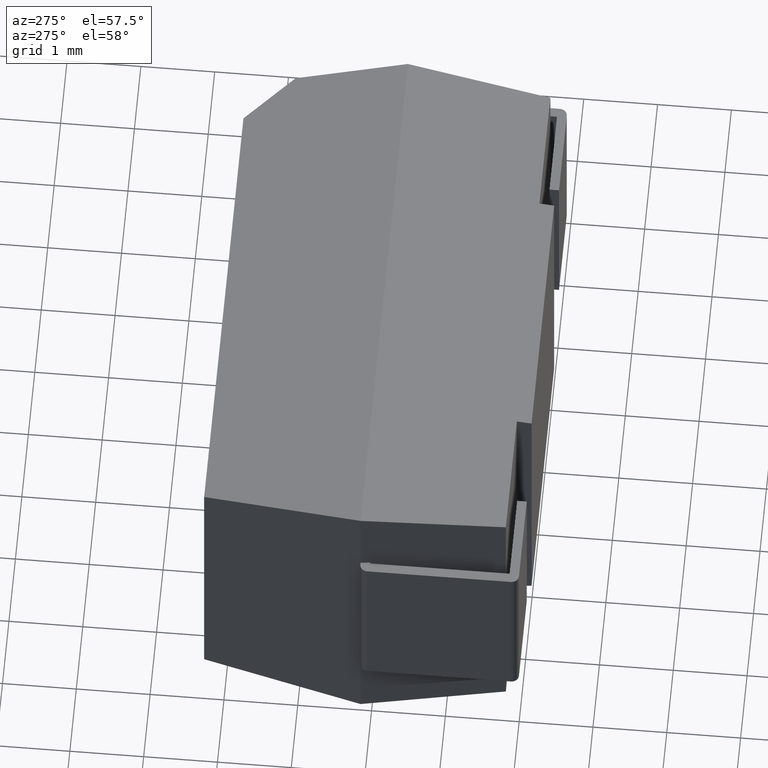
[diagram: clean part render]
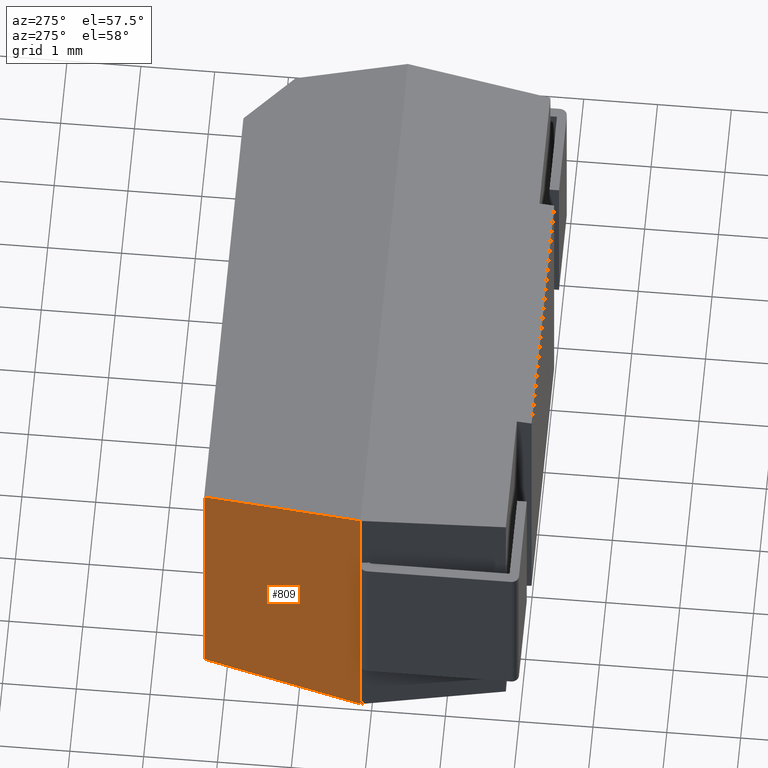
[diagram: same view with one face highlighted and labeled with its STEP entity id]
A machine part, auxiliary view. The second image highlights one B-rep face of the part: STEP entity #809.
In plain terms, the highlighted planar face has unit normal (-0.986, 0.167, 0).
Its self-contained STEP definition (entity closure, byte-faithful):
#31 = EDGE_CURVE ( 'NONE', #2853, #2757, #1978, .T. ) ;
#57 = PLANE ( 'NONE',  #2477 ) ;
#185 = DIRECTION ( 'NONE',  ( -0.1657572783236788971, -0.9788887349364673307, -0.1195883326132152757 ) ) ;
#311 = CARTESIAN_POINT ( 'NONE',  ( 0.000000000000000000, 2.149999999999998135, -4.599999999999999645 ) ) ;
#547 = EDGE_CURVE ( 'NONE', #2853, #3748, #2630, .T. ) ;
#557 = CARTESIAN_POINT ( 'NONE',  ( 0.000000000000000000, 2.149999999999998135, -4.599999999999999645 ) ) ;
#566 = DIRECTION ( 'NONE',  ( -0.000000000000000000, -0.000000000000000000, 1.000000000000000000 ) ) ;
#641 = CARTESIAN_POINT ( 'NONE',  ( -0.2576704267893988320, 0.6283131053957318191, 0.1859005952263995398 ) ) ;
#748 = VECTOR ( 'NONE', #185, 1000.000000000000114 ) ;
#758 = VECTOR ( 'NONE', #1373, 1000.000000000000000 ) ;
#809 = ADVANCED_FACE ( 'NONE', ( #3573 ), #57, .T. ) ;
#814 = VERTEX_POINT ( 'NONE', #2639 ) ;
#851 = LINE ( 'NONE', #557, #2584 ) ;
#915 = LINE ( 'NONE', #311, #2332 ) ;
#967 = ORIENTED_EDGE ( 'NONE', *, *, #1814, .T. ) ;
#1144 = EDGE_CURVE ( 'NONE', #814, #1926, #915, .T. ) ;
#1246 = DIRECTION ( 'NONE',  ( -0.1657572783236788971, -0.9788887349364673307, 0.1195883326132152757 ) ) ;
#1338 = CARTESIAN_POINT ( 'NONE',  ( 0.000000000000000000, 2.150000000000003464, -4.599999999999999645 ) ) ;
#1373 = DIRECTION ( 'NONE',  ( -0.000000000000000000, -0.000000000000000000, 1.000000000000000000 ) ) ;
#1437 = ORIENTED_EDGE ( 'NONE', *, *, #31, .T. ) ;
#1487 = CARTESIAN_POINT ( 'NONE',  ( 0.000000000000000000, 2.149999999999998135, -1.050000000000000044 ) ) ;
#1705 = CARTESIAN_POINT ( 'NONE',  ( -0.3488545548422725684, 0.08982021592113749453, -4.851686893993560901 ) ) ;
#1814 = EDGE_CURVE ( 'NONE', #1926, #3412, #851, .T. ) ;
#1926 = VERTEX_POINT ( 'NONE', #1487 ) ;
#1978 = LINE ( 'NONE', #1705, #748 ) ;
#2027 = DIRECTION ( 'NONE',  ( -0.000000000000000000, -0.000000000000000000, 1.000000000000000000 ) ) ;
#2040 = DIRECTION ( 'NONE',  ( -0.9859644449443968339, 0.1669554231089472318, 0.000000000000000000 ) ) ;
#2116 = DIRECTION ( 'NONE',  ( -0.1669554231089472041, -0.9859644449443967229, 0.000000000000000000 ) ) ;
#2170 = VECTOR ( 'NONE', #1246, 1000.000000000000114 ) ;
#2174 = CARTESIAN_POINT ( 'NONE',  ( 0.000000000000000000, 2.150000000000003464, 0.000000000000000000 ) ) ;
#2201 = LINE ( 'NONE', #641, #2170 ) ;
#2259 = CARTESIAN_POINT ( 'NONE',  ( 0.000000000000000000, 2.149999999999998135, -4.599999999999999645 ) ) ;
#2289 = CARTESIAN_POINT ( 'NONE',  ( 0.3640639999999995546, 4.299999999999999822, -4.337340000000000195 ) ) ;
#2312 = ORIENTED_EDGE ( 'NONE', *, *, #1144, .T. ) ;
#2332 = VECTOR ( 'NONE', #2417, 1000.000000000000000 ) ;
#2417 = DIRECTION ( 'NONE',  ( -0.000000000000000000, -0.000000000000000000, 1.000000000000000000 ) ) ;
#2435 = EDGE_CURVE ( 'NONE', #3748, #3412, #2201, .T. ) ;
#2477 = AXIS2_PLACEMENT_3D ( 'NONE', #3264, #2040, #2116 ) ;
#2557 = ORIENTED_EDGE ( 'NONE', *, *, #547, .F. ) ;
#2584 = VECTOR ( 'NONE', #2027, 1000.000000000000000 ) ;
#2630 = LINE ( 'NONE', #2891, #3054 ) ;
#2639 = CARTESIAN_POINT ( 'NONE',  ( 7.047314121155778821E-16, 2.150000000000003464, -3.549999999999999822 ) ) ;
#2757 = VERTEX_POINT ( 'NONE', #1338 ) ;
#2853 = VERTEX_POINT ( 'NONE', #2289 ) ;
#2891 = CARTESIAN_POINT ( 'NONE',  ( 0.3640639999999999987, 4.300000000000000711, -4.599999999999999645 ) ) ;
#3054 = VECTOR ( 'NONE', #566, 1000.000000000000000 ) ;
#3139 = EDGE_LOOP ( 'NONE', ( #2557, #1437, #3766, #2312, #967, #3407 ) ) ;
#3162 = EDGE_CURVE ( 'NONE', #2757, #814, #3770, .T. ) ;
#3241 = CARTESIAN_POINT ( 'NONE',  ( 0.3640639999999996101, 4.299999999999999822, -0.2626599999999997270 ) ) ;
#3264 = CARTESIAN_POINT ( 'NONE',  ( -0.3539160388135504931, 0.05992934360679828820, -4.599999999999999645 ) ) ;
#3407 = ORIENTED_EDGE ( 'NONE', *, *, #2435, .F. ) ;
#3412 = VERTEX_POINT ( 'NONE', #2174 ) ;
#3573 = FACE_OUTER_BOUND ( 'NONE', #3139, .T. ) ;
#3748 = VERTEX_POINT ( 'NONE', #3241 ) ;
#3766 = ORIENTED_EDGE ( 'NONE', *, *, #3162, .T. ) ;
#3770 = LINE ( 'NONE', #2259, #758 ) ;